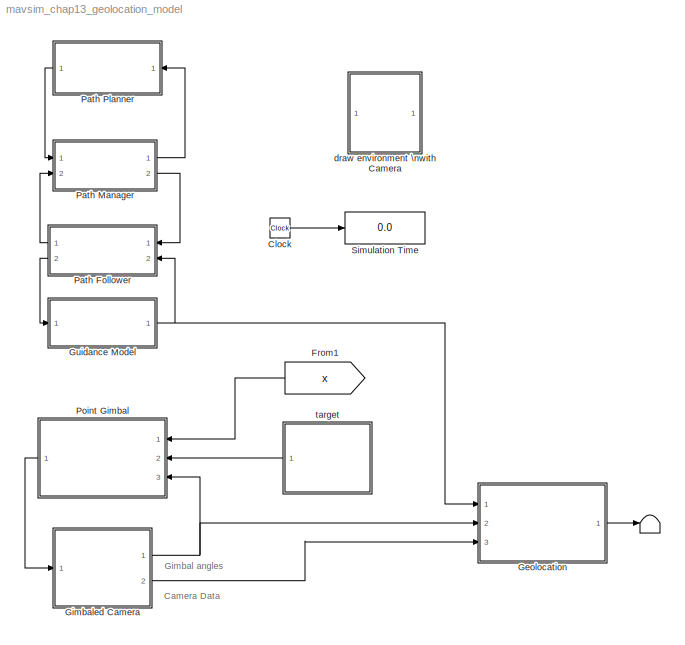
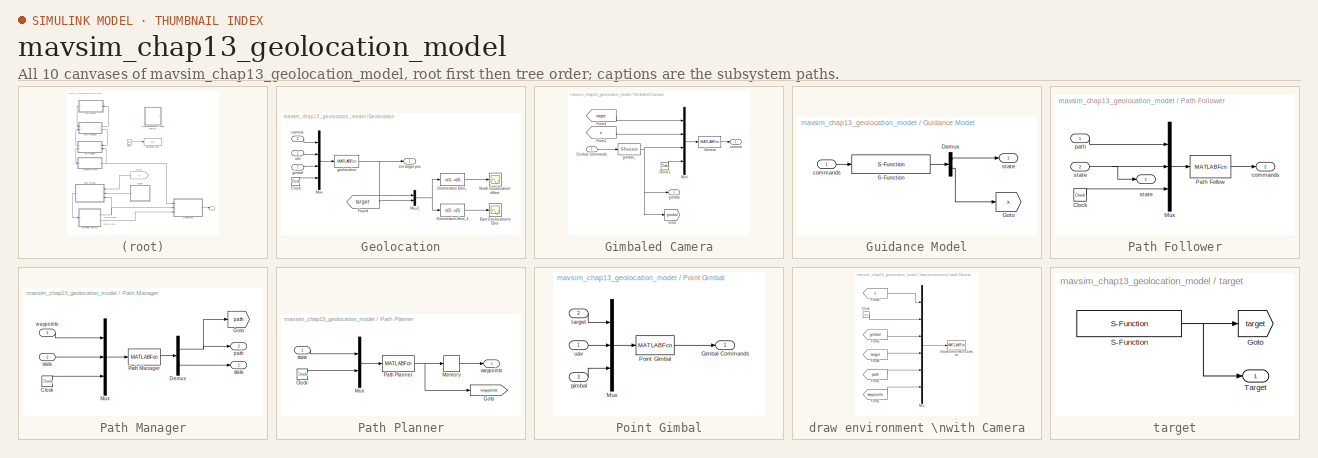
[diagram: thumbnail index - all 10 canvases of the model, root first then tree order]
MODEL mavsim_chap13_geolocation_model
KIND model
BLOCK [Terminator]  
  SID = 231
BLOCK [Clock] Clock
  Decimation = 10
  SID = 12
BLOCK [From] From1
  CloseFcn = tagdialog Close
  GotoTag = x
  SID = 232
  TagVisibility = global
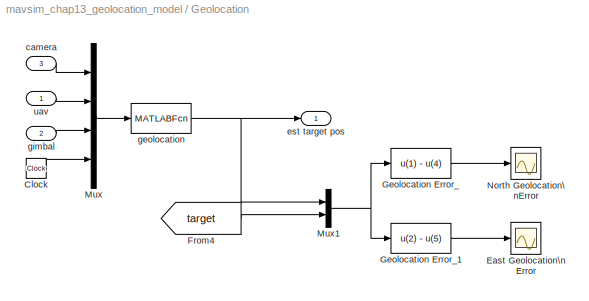
BLOCK [SubSystem] Geolocation
  FunctionWithSeparateData = off
  MaskHideContents = off
  MinAlgLoopOccurrences = off
  Opaque = off
  Ports = [3, 1]
  PropExecContextOutsideSubsystem = off
  RTWSystemCode = Auto
  RequestExecContextInheritance = off
  SID = 270
BLOCK [Clock] Geolocation/Clock
  Decimation = 10
  SID = 274
BLOCK [Scope] Geolocation/East Geolocation\nError
  DataFormat = StructureWithTime
  Floating = off
  LimitDataPoints = off
  NumInputPorts = 1
  Ports = [1]
  SID = 275
  SampleTime = 0
  SaveName = ScopeData1
  TimeRange = 109.5575221238938
  YMax = 25
  YMin = -300
BLOCK [From] Geolocation/From4
  CloseFcn = tagdialog Close
  GotoTag = target
  SID = 276
  TagVisibility = global
BLOCK [Fcn] Geolocation/Geolocation Error_
  Expr = u(1) - u(4)
  SID = 277
BLOCK [Fcn] Geolocation/Geolocation Error_1
  Expr = u(2) - u(5)
  SID = 278
BLOCK [Mux] Geolocation/Mux
  DisplayOption = bar
  Ports = [4, 1]
  SID = 279
BLOCK [Mux] Geolocation/Mux1
  DisplayOption = bar
  Inputs = 2
  Ports = [2, 1]
  SID = 280
BLOCK [Scope] Geolocation/North Geolocation\nError
  DataFormat = StructureWithTime
  Floating = off
  LimitDataPoints = off
  NumInputPorts = 1
  Ports = [1]
  SID = 281
  SampleTime = 0
  TimeRange = 116.3106796116505
  YMax = 25
  YMin = -300
BLOCK [Inport] Geolocation/camera
  IconDisplay = Port number
  OutDataType = sfix(16)
  OutScaling = 2^0
  Port = 3
  SID = 273
BLOCK [Outport] Geolocation/est target pos
  IconDisplay = Port number
  OutDataType = sfix(16)
  OutScaling = 2^0
  SID = 283
BLOCK [MATLABFcn] Geolocation/geolocation
  MATLABFcn = geolocation(u,P)
  OutputDimensions = 3
  Ports = [1, 1]
  SID = 282
  SampleTime = P.Ts
BLOCK [Inport] Geolocation/gimbal
  IconDisplay = Port number
  OutDataType = sfix(16)
  OutScaling = 2^0
  Port = 2
  SID = 272
BLOCK [Inport] Geolocation/uav
  IconDisplay = Port number
  OutDataType = sfix(16)
  OutScaling = 2^0
  SID = 271
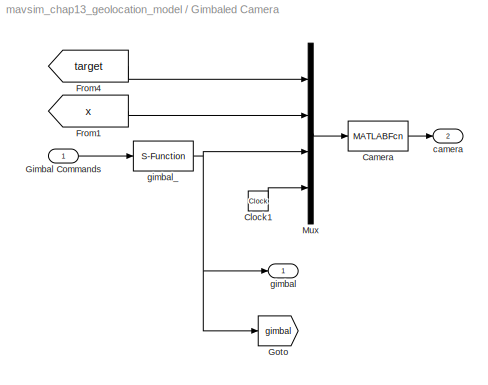
BLOCK [SubSystem] Gimbaled Camera
  FunctionWithSeparateData = off
  MaskDisplay = image(imread('gimbal.jpg'))
  MaskHideContents = off
  MaskIconFrame = on
  MaskIconOpaque = on
  MaskIconRotate = none
  MaskIconUnits = autoscale
  MaskPortRotate = default
  MinAlgLoopOccurrences = off
  Opaque = off
  Ports = [1, 2]
  PropExecContextOutsideSubsystem = off
  RTWSystemCode = Auto
  RequestExecContextInheritance = off
  SID = 233
BLOCK [MATLABFcn] Gimbaled Camera/Camera
  MATLABFcn = camera(u,P)
  OutputDimensions = 3
  Ports = [1, 1]
  SID = 235
  SampleTime = 1/P.cam_fps
BLOCK [Clock] Gimbaled Camera/Clock1
  Decimation = 10
  SID = 236
BLOCK [From] Gimbaled Camera/From1
  CloseFcn = tagdialog Close
  GotoTag = x
  SID = 237
  TagVisibility = global
BLOCK [From] Gimbaled Camera/From4
  CloseFcn = tagdialog Close
  GotoTag = target
  SID = 238
  TagVisibility = global
BLOCK [Inport] Gimbaled Camera/Gimbal Commands
  IconDisplay = Port number
  OutDataType = sfix(16)
  OutScaling = 2^0
  SID = 234
BLOCK [Goto] Gimbaled Camera/Goto
  GotoTag = gimbal
  SID = 239
  TagVisibility = global
BLOCK [Mux] Gimbaled Camera/Mux
  DisplayOption = bar
  Ports = [4, 1]
  SID = 240
BLOCK [Outport] Gimbaled Camera/camera
  IconDisplay = Port number
  OutDataType = sfix(16)
  OutScaling = 2^0
  Port = 2
  SID = 243
BLOCK [Outport] Gimbaled Camera/gimbal
  IconDisplay = Port number
  OutDataType = sfix(16)
  OutScaling = 2^0
  SID = 242
BLOCK [S-Function] Gimbaled Camera/gimbal_
  EnableBusSupport = off
  FunctionName = gimbal
  Parameters = P
  Ports = [1, 1]
  SID = 241
BLOCK [SubSystem] Guidance Model
  FunctionWithSeparateData = off
  MaskHideContents = off
  MinAlgLoopOccurrences = off
  Opaque = off
  Ports = [1, 1]
  PropExecContextOutsideSubsystem = off
  RTWSystemCode = Auto
  RequestExecContextInheritance = off
  SID = 135
BLOCK [Demux] Guidance Model/Demux
  DisplayOption = bar
  Outputs = [16;12]
  Ports = [1, 2]
  SID = 182
BLOCK [Goto] Guidance Model/Goto
  GotoTag = x
  SID = 134
  TagVisibility = global
BLOCK [S-Function] Guidance Model/S-Function
  EnableBusSupport = off
  FunctionName = guidance_model
  Parameters = P
  Ports = [1, 1]
  SID = 89
BLOCK [Inport] Guidance Model/commands
  IconDisplay = Port number
  SID = 136
BLOCK [Outport] Guidance Model/state
  IconDisplay = Port number
  OutDataType = fixdt(1, 16)
  OutScaling = 2^0
  SID = 137
BLOCK [SubSystem] Path Follower
  FunctionWithSeparateData = off
  MaskHideContents = off
  MinAlgLoopOccurrences = off
  Opaque = off
  Ports = [2, 2]
  PropExecContextOutsideSubsystem = off
  RTWSystemCode = Auto
  RequestExecContextInheritance = off
  SID = 162
BLOCK [Clock] Path Follower/Clock
  Decimation = 10
  SID = 165
BLOCK [Mux] Path Follower/Mux
  DisplayOption = bar
  Inputs = 3
  Ports = [3, 1]
  SID = 166
BLOCK [MATLABFcn] Path Follower/Path Follow
  MATLABFcn = path_follow(u,P)
  OutputDimensions = 3
  Ports = [1, 1]
  SID = 167
  SampleTime = P.Ts
BLOCK [Outport] Path Follower/commands
  IconDisplay = Port number
  Port = 2
  SID = 168
BLOCK [Inport] Path Follower/path
  IconDisplay = Port number
  SID = 163
BLOCK [Inport] Path Follower/state
  IconDisplay = Port number
  Port = 2
  SID = 164
BLOCK [Outport] Path Follower/state 
  IconDisplay = Port number
  SID = 183
BLOCK [SubSystem] Path Manager
  FunctionWithSeparateData = off
  MaskHideContents = off
  MinAlgLoopOccurrences = off
  Opaque = off
  Ports = [2, 2]
  PropExecContextOutsideSubsystem = off
  RTWSystemCode = Auto
  RequestExecContextInheritance = off
  SID = 213
BLOCK [Clock] Path Manager/Clock
  Decimation = 10
  SID = 216
BLOCK [Demux] Path Manager/Demux
  DisplayOption = bar
  Outputs = [13;17]
  Ports = [1, 2]
  SID = 217
BLOCK [Goto] Path Manager/Goto
  GotoTag = path
  SID = 218
  TagVisibility = global
BLOCK [Mux] Path Manager/Mux
  DisplayOption = bar
  Inputs = 3
  Ports = [3, 1]
  SID = 219
BLOCK [MATLABFcn] Path Manager/Path Manager
  MATLABFcn = path_manager(u,P)
  OutputDimensions = 30
  Ports = [1, 1]
  SID = 220
  SampleTime = P.Ts
BLOCK [Outport] Path Manager/path
  IconDisplay = Port number
  Port = 2
  SID = 222
BLOCK [Inport] Path Manager/state
  IconDisplay = Port number
  Port = 2
  SID = 215
BLOCK [Outport] Path Manager/state 
  IconDisplay = Port number
  SID = 221
BLOCK [Inport] Path Manager/waypoints
  IconDisplay = Port number
  SID = 214
BLOCK [SubSystem] Path Planner
  FunctionWithSeparateData = off
  MaskHideContents = off
  MinAlgLoopOccurrences = off
  Opaque = off
  Ports = [1, 1]
  PropExecContextOutsideSubsystem = off
  RTWSystemCode = Auto
  RequestExecContextInheritance = off
  SID = 223
BLOCK [Clock] Path Planner/Clock
  Decimation = 10
  SID = 225
BLOCK [Goto] Path Planner/Goto
  GotoTag = waypoints
  SID = 226
  TagVisibility = global
BLOCK [Memory] Path Planner/Memory
  SID = 227
BLOCK [Mux] Path Planner/Mux
  DisplayOption = bar
  Inputs = 2
  Ports = [2, 1]
  SID = 228
BLOCK [MATLABFcn] Path Planner/Path Planner
  MATLABFcn = path_planner(u,P,map)
  OutputDimensions = 1+5*P.size_waypoint_array
  Ports = [1, 1]
  SID = 229
  SampleTime = 100*P.Ts
BLOCK [Inport] Path Planner/state
  IconDisplay = Port number
  SID = 224
BLOCK [Outport] Path Planner/waypoints
  IconDisplay = Port number
  SID = 230
BLOCK [SubSystem] Point Gimbal
  FunctionWithSeparateData = off
  MaskHideContents = off
  MinAlgLoopOccurrences = off
  Opaque = off
  Ports = [3, 1]
  PropExecContextOutsideSubsystem = off
  RTWSystemCode = Auto
  RequestExecContextInheritance = off
  SID = 250
BLOCK [Outport] Point Gimbal/Gimbal Commands
  IconDisplay = Port number
  OutDataType = sfix(16)
  OutScaling = 2^0
  SID = 256
BLOCK [Mux] Point Gimbal/Mux
  DisplayOption = bar
  Inputs = 3
  Ports = [3, 1]
  SID = 254
BLOCK [MATLABFcn] Point Gimbal/Point Gimbal
  MATLABFcn = point_gimbal(u,P)
  OutputDimensions = 2
  Ports = [1, 1]
  SID = 255
  SampleTime = P.Ts
BLOCK [Inport] Point Gimbal/gimbal
  IconDisplay = Port number
  OutDataType = sfix(16)
  OutScaling = 2^0
  Port = 3
  SID = 253
BLOCK [Inport] Point Gimbal/target
  IconDisplay = Port number
  OutDataType = sfix(16)
  OutScaling = 2^0
  Port = 2
  SID = 252
BLOCK [Inport] Point Gimbal/uav
  IconDisplay = Port number
  OutDataType = sfix(16)
  OutScaling = 2^0
  SID = 251
BLOCK [Display] Simulation Time
  Decimation = 1
  Lockdown = off
  Ports = [1]
  SID = 31
BLOCK [SubSystem] draw environment \nwith Camera
  FunctionWithSeparateData = off
  MaskCallbackString = ||
  MaskDisplay = image(imread('tv.jpg'))
  MaskEnableString = on,on,on
  MaskHideContents = off
  MaskIconFrame = on
  MaskIconOpaque = on
  MaskIconRotate = none
  MaskIconUnits = autoscale
  MaskInitialization = % parameters for drawing aircraft\n  % scale size\n  size = 1;\n  fuse_l1    = 7;\n  fuse_l2    = 4;\n  fuse_l3    = 15;\n  fuse_w     = 2;\n  wing_l     = 6;\n  wing_w     = 20;\n  tail_l     = 3;\n  tail_h     = 3;\n  tailwing_w = 10;\n  tailwing_l = 3;\n  % colors\n  red     = [1, 0, 0];\n  green   = [0, 1, 0];\n  blue    = [0, 0, 1];\n  yellow  = [1,1,0];\n  magenta = [0, 1, 1];\n  \n\n% defin...<+2046ch>
  MaskPortRotate = default
  MaskPromptString = map|R_min|FOV of Camera
  MaskStyleString = edit,edit,edit
  MaskToolTipString = on,on,on
  MaskTunableValueString = on,on,on
  MaskValueString = map|P.R_min|P.cam_fov
  MaskVariables = map=@1;R_min=@2;cam_fov=@3;
  MaskVisibilityString = on,on,on
  MinAlgLoopOccurrences = off
  Opaque = off
  Ports = []
  PropExecContextOutsideSubsystem = off
  RTWSystemCode = Auto
  RequestExecContextInheritance = off
  SID = 261
BLOCK [Clock] draw environment \nwith Camera/Clock
  Decimation = 10
  SID = 262
BLOCK [From] draw environment \nwith Camera/From1
  CloseFcn = tagdialog Close
  GotoTag = path
  SID = 263
  TagVisibility = global
BLOCK [From] draw environment \nwith Camera/From2
  CloseFcn = tagdialog Close
  GotoTag = waypoints
  SID = 264
  TagVisibility = global
BLOCK [From] draw environment \nwith Camera/From3
  CloseFcn = tagdialog Close
  GotoTag = x
  SID = 265
  TagVisibility = global
BLOCK [From] draw environment \nwith Camera/From4
  CloseFcn = tagdialog Close
  GotoTag = target
  SID = 266
  TagVisibility = global
BLOCK [From] draw environment \nwith Camera/From5
  CloseFcn = tagdialog Close
  GotoTag = gimbal
  SID = 267
  TagVisibility = global
BLOCK [Mux] draw environment \nwith Camera/Mux
  DisplayOption = bar
  Inputs = 6
  Ports = [6, 1]
  SID = 268
BLOCK [MATLABFcn] draw environment \nwith Camera/drawEnvironmentCamera
  MATLABFcn = drawEnvironmentCamera(u,V,F,colors,map,R_min,cam_fov)
  OutputDimensions = 0
  Ports = [1]
  SID = 269
  SampleTime = 0.1
BLOCK [SubSystem] target
  FunctionWithSeparateData = off
  MaskDisplay = image(imread('monstertruck.jpg'))
  MaskHideContents = off
  MaskIconFrame = on
  MaskIconOpaque = on
  MaskIconRotate = none
  MaskIconUnits = autoscale
  MaskPortRotate = default
  MinAlgLoopOccurrences = off
  Opaque = off
  Ports = [0, 1]
  PropExecContextOutsideSubsystem = off
  RTWSystemCode = Auto
  RequestExecContextInheritance = off
  SID = 257
BLOCK [Goto] target/Goto
  GotoTag = target
  SID = 258
  TagVisibility = global
BLOCK [S-Function] target/S-Function
  EnableBusSupport = off
  FunctionName = target_motion
  Parameters = P,map
  Ports = [0, 1]
  SID = 259
BLOCK [Outport] target/Target
  IconDisplay = Port number
  OutDataType = sfix(16)
  OutScaling = 2^0
  SID = 260
ANNOTATION (root): Camera Data
ANNOTATION (root): Gimbal angles
LINE Clock:1 -> Simulation Time:1
LINE From1:1 -> Point Gimbal:1
LINE Geolocation/Clock:1 -> Geolocation/Mux:4
LINE Geolocation/From4:1 -> Geolocation/Mux1:2
LINE Geolocation/Geolocation Error_1:1 -> Geolocation/East Geolocation\nError:1
LINE Geolocation/Geolocation Error_:1 -> Geolocation/North Geolocation\nError:1
NET Geolocation/Mux1:1 -> Geolocation/Geolocation Error_1:1, Geolocation/Geolocation Error_:1
LINE Geolocation/Mux:1 -> Geolocation/geolocation:1
LINE Geolocation/camera:1 -> Geolocation/Mux:1
NET Geolocation/geolocation:1 -> Geolocation/Mux1:1, Geolocation/est target pos:1
LINE Geolocation/gimbal:1 -> Geolocation/Mux:3
LINE Geolocation/uav:1 -> Geolocation/Mux:2
LINE Geolocation:1 ->  :1
LINE Gimbaled Camera/Camera:1 -> Gimbaled Camera/camera:1
LINE Gimbaled Camera/Clock1:1 -> Gimbaled Camera/Mux:4
LINE Gimbaled Camera/From1:1 -> Gimbaled Camera/Mux:2
LINE Gimbaled Camera/From4:1 -> Gimbaled Camera/Mux:1
LINE Gimbaled Camera/Gimbal Commands:1 -> Gimbaled Camera/gimbal_:1
LINE Gimbaled Camera/Mux:1 -> Gimbaled Camera/Camera:1
NET Gimbaled Camera/gimbal_:1 -> Gimbaled Camera/Goto:1, Gimbaled Camera/Mux:3, Gimbaled Camera/gimbal:1
NET Gimbaled Camera:1 -> Geolocation:2, Point Gimbal:3
LINE Gimbaled Camera:2 -> Geolocation:3
LINE Guidance Model/Demux:1 -> Guidance Model/state:1
LINE Guidance Model/Demux:2 -> Guidance Model/Goto:1
LINE Guidance Model/S-Function:1 -> Guidance Model/Demux:1
LINE Guidance Model/commands:1 -> Guidance Model/S-Function:1
NET Guidance Model:1 -> Geolocation:1, Path Follower:2
LINE Path Follower/Clock:1 -> Path Follower/Mux:3
LINE Path Follower/Mux:1 -> Path Follower/Path Follow:1
LINE Path Follower/Path Follow:1 -> Path Follower/commands:1
LINE Path Follower/path:1 -> Path Follower/Mux:1
NET Path Follower/state:1 -> Path Follower/Mux:2, Path Follower/state :1
LINE Path Follower:1 -> Path Manager:2
LINE Path Follower:2 -> Guidance Model:1
LINE Path Manager/Clock:1 -> Path Manager/Mux:3
NET Path Manager/Demux:1 -> Path Manager/Goto:1, Path Manager/path:1
LINE Path Manager/Demux:2 -> Path Manager/state :1
LINE Path Manager/Mux:1 -> Path Manager/Path Manager:1
LINE Path Manager/Path Manager:1 -> Path Manager/Demux:1
LINE Path Manager/state:1 -> Path Manager/Mux:2
LINE Path Manager/waypoints:1 -> Path Manager/Mux:1
LINE Path Manager:1 -> Path Planner:1
LINE Path Manager:2 -> Path Follower:1
LINE Path Planner/Clock:1 -> Path Planner/Mux:2
LINE Path Planner/Memory:1 -> Path Planner/waypoints:1
LINE Path Planner/Mux:1 -> Path Planner/Path Planner:1
NET Path Planner/Path Planner:1 -> Path Planner/Goto:1, Path Planner/Memory:1
LINE Path Planner/state:1 -> Path Planner/Mux:1
LINE Path Planner:1 -> Path Manager:1
LINE Point Gimbal/Mux:1 -> Point Gimbal/Point Gimbal:1
LINE Point Gimbal/Point Gimbal:1 -> Point Gimbal/Gimbal Commands:1
LINE Point Gimbal/gimbal:1 -> Point Gimbal/Mux:3
LINE Point Gimbal/target:1 -> Point Gimbal/Mux:1
LINE Point Gimbal/uav:1 -> Point Gimbal/Mux:2
LINE Point Gimbal:1 -> Gimbaled Camera:1
LINE draw environment \nwith Camera/Clock:1 -> draw environment \nwith Camera/Mux:2
LINE draw environment \nwith Camera/From1:1 -> draw environment \nwith Camera/Mux:5
LINE draw environment \nwith Camera/From2:1 -> draw environment \nwith Camera/Mux:6
LINE draw environment \nwith Camera/From3:1 -> draw environment \nwith Camera/Mux:1
LINE draw environment \nwith Camera/From4:1 -> draw environment \nwith Camera/Mux:4
LINE draw environment \nwith Camera/From5:1 -> draw environment \nwith Camera/Mux:3
LINE draw environment \nwith Camera/Mux:1 -> draw environment \nwith Camera/drawEnvironmentCamera:1
NET target/S-Function:1 -> target/Goto:1, target/Target:1
LINE target:1 -> Point Gimbal:2
note: NET lines group one-source signal fan-out (src -> all destinations, sorted); 1:1 wires keep LINE
